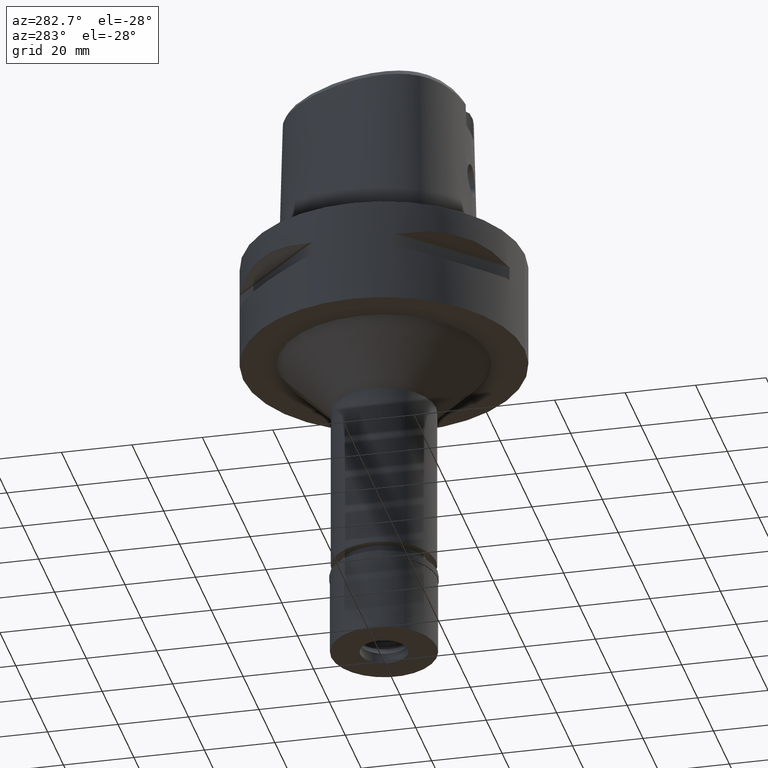
[diagram: clean part render]
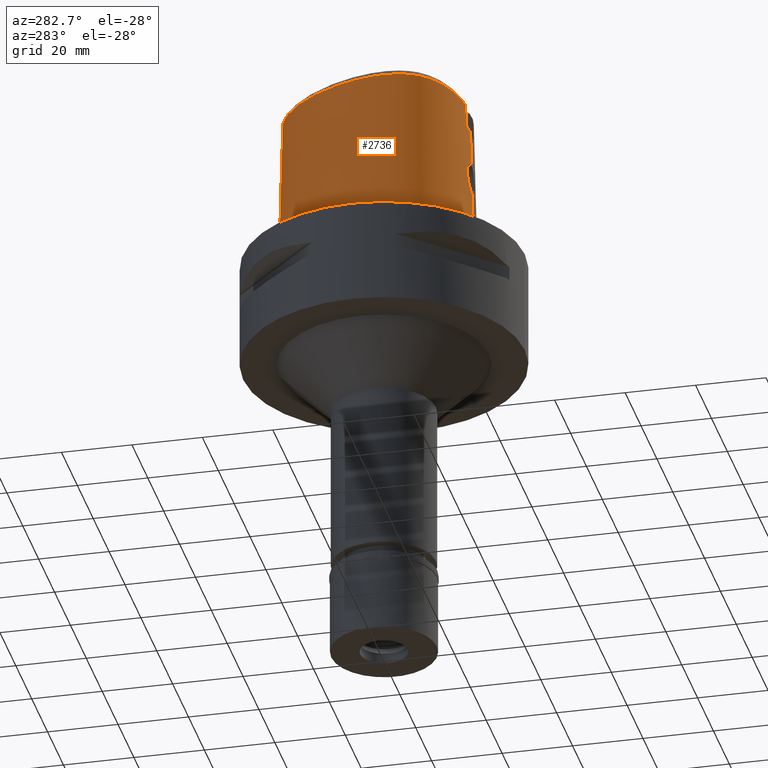
[diagram: same view with one face highlighted and labeled with its STEP entity id]
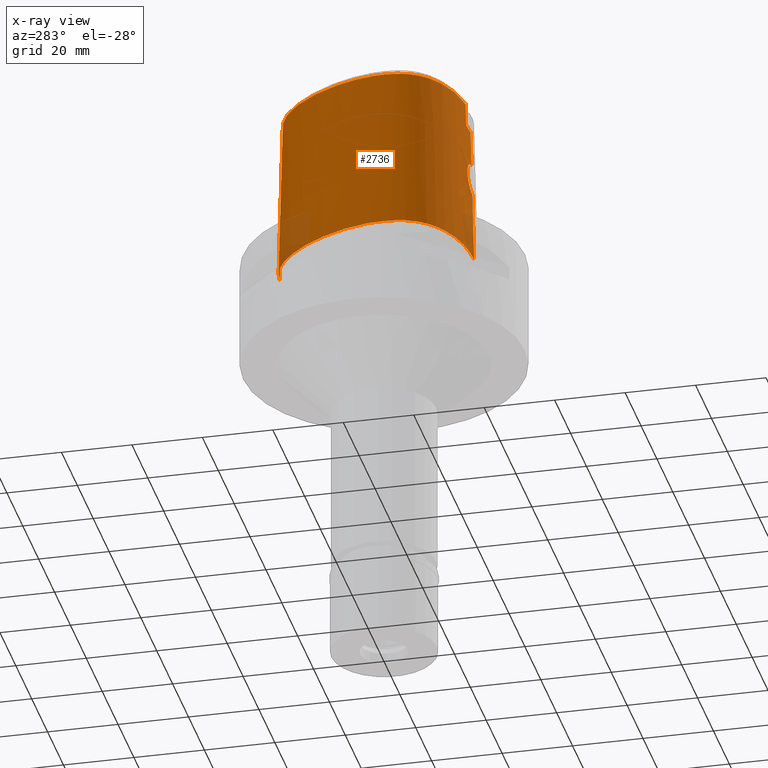
[diagram: x-ray of the same camera — body ghosted, the highlighted face saturated]
A machine part, auxiliary view. The second image highlights one B-rep face of the part: STEP entity #2736.
The next image is the same camera in x-ray: the body ghosted, the highlighted face saturated — about 5% of this face is hidden behind the body in this view.
In plain terms, the highlighted face is a freeform B-spline surface patch.
Its self-contained STEP definition (entity closure, byte-faithful):
#3 = CARTESIAN_POINT ( 'NONE',  ( -9.105791384800999921, 26.46675901278999987, 15.19677599112999999 ) ) ;
#9 = B_SPLINE_CURVE_WITH_KNOTS ( 'NONE', 3,
 ( #1922, #730, #2345, #3523, #2370, #398, #4357, #4746, #4117, #1312, #1661, #2849, #2472, #2511, #4407, #946, #1264, #2053, #2096, #541, #1711, #2538, #3214, #567, #4020, #3649, #474, #4091, #3673, #2493, #2900, #4431, #3286, #3627, #87, #2127, #3599, #882, #3237, #2822, #1735, #4819, #4048, #925, #852, #497, #2073, #111, #3304, #1333, #1683, #134, #3259, #4846, #4870, #4480, #4891, #517, #64, #3702, #1291, #2922, #2440, #4797, #2881, #4459, #157, #4501, #904, #1639, #1240, #4069, #1026, #4225, #1078, #238, #1816, #997, #3329, #4634, #972, #2174, #5029, #264, #4585, #3748, #3386, #2666, #2618, #5000, #288, #2948, #1435, #2975, #2233, #668, #204 ),
 .UNSPECIFIED., .F., .F.,
 ( 4, 2, 2, 1, 1, 1, 2, 2, 2, 2, 1, 1, 2, 2, 2, 1, 1, 1, 2, 2, 2, 2, 2, 1, 1, 2, 2, 2, 2, 1, 2, 2, 2, 2, 1, 1, 1, 2, 2, 2, 2, 1, 1, 2, 2, 2, 1, 1, 1, 2, 2, 2, 2, 2, 1, 1, 2, 2, 4 ),
 ( 0.0000000000000000000, 0.06249999999998936961, 0.09374999999998405442, 0.1093749999999814038, 0.1171874999999800715, 0.1210937499999793776, 0.1230468749999791833, 0.1249999999999789890, 0.1562499999999789058, 0.1718749999999788503, 0.1796874999999787670, 0.1835937499999787115, 0.1855468749999788503, 0.1874999999999789890, 0.2187499999999811540, 0.2343749999999824585, 0.2421874999999830691, 0.2460937499999833467, 0.2480468749999837352, 0.2499999999999841238, 0.3125000000000073275, 0.3437500000000193179, 0.3593750000000256462, 0.3671875000000284217, 0.3710937500000298095, 0.3730468750000301426, 0.3750000000000304756, 0.4375000000000274780, 0.4687500000000256462, 0.4843750000000247025, 0.4921875000000245914, 0.5000000000000245359, 0.5625000000000260902, 0.5937500000000265343, 0.6093750000000264233, 0.6171875000000264233, 0.6210937500000260902, 0.6230468750000259792, 0.6250000000000258682, 0.6562500000000214273, 0.6718750000000192069, 0.6796875000000180966, 0.6835937500000175415, 0.6855468750000169864, 0.6875000000000164313, 0.7187500000000078826, 0.7343750000000033307, 0.7421875000000009992, 0.7460937499999997780, 0.7480468749999994449, 0.7499999999999991118, 0.8125000000000007772, 0.8437500000000013323, 0.8593750000000016653, 0.8671875000000017764, 0.8710937500000016653, 0.8730468750000015543, 0.8750000000000014433, 1.000000000000000000 ),
 .UNSPECIFIED. ) ;
#28 = CARTESIAN_POINT ( 'NONE',  ( -21.30723541664999843, 12.30173080092000149, 47.45115768658000377 ) ) ;
#51 = CARTESIAN_POINT ( 'NONE',  ( -26.76156674046000106, -1.884109368367999915, 31.32396683884999788 ) ) ;
#64 = CARTESIAN_POINT ( 'NONE',  ( -4.256460948041309145, -24.80084657812259863, 23.39133378591556678 ) ) ;
#80 = CARTESIAN_POINT ( 'NONE',  ( -26.66520820062999775, -5.367805594694999627, 47.45115768658000377 ) ) ;
#87 = CARTESIAN_POINT ( 'NONE',  ( -3.972636365752692633, -24.72937778087100469, 27.22257177643495396 ) ) ;
#89 = CARTESIAN_POINT ( 'NONE',  ( -1.451045074373000022E-08, -24.57504746727000011, 40.00000005214000254 ) ) ;
#111 = CARTESIAN_POINT ( 'NONE',  ( -4.536359085941239933, -24.72544551544414659, 25.35955479186052841 ) ) ;
#127 = CARTESIAN_POINT ( 'NONE',  ( -11.43012056388999831, -22.98864562392000011, 47.45115768658000377 ) ) ;
#134 = CARTESIAN_POINT ( 'NONE',  ( -4.550009659928404560, -24.73228693208368867, 25.03285394944703057 ) ) ;
#137 = CARTESIAN_POINT ( 'NONE',  ( -4.602965878455999693, -24.35127227233000013, 40.00000000000000000 ) ) ;
#149 = CARTESIAN_POINT ( 'NONE',  ( 1.372734075386999954E-14, -24.83629963747999980, 29.55000000000000071 ) ) ;
#153 = CARTESIAN_POINT ( 'NONE',  ( 0.5689259952328999947, -25.59577896860000124, -0.9304148565995000730 ) ) ;
#157 = CARTESIAN_POINT ( 'NONE',  ( -3.957281473798043514, -24.84276546235786043, 22.75305380327923999 ) ) ;
#180 = ORIENTED_EDGE ( 'NONE', *, *, #2330, .F. ) ;
#189 = CARTESIAN_POINT ( 'NONE',  ( 3.862072967820000008E-11, 29.57499999998999840, 6.979602081476998784E-14 ) ) ;
#199 = CARTESIAN_POINT ( 'NONE',  ( -2.393548608512999998, -25.62160469787000139, -0.9304148565995000730 ) ) ;
#204 = CARTESIAN_POINT ( 'NONE',  ( -1.989063487286999783E-12, -25.06378435148999984, 20.44999999999999929 ) ) ;
#207 = CARTESIAN_POINT ( 'NONE',  ( -24.62887906780809644, -14.21948995895007428, 46.52070903171015459 ) ) ;
#214 = CARTESIAN_POINT ( 'NONE',  ( -1.989063487286999783E-12, -25.06378435148999984, 20.44999999999999929 ) ) ;
#238 = CARTESIAN_POINT ( 'NONE',  ( -3.472208232089663227, -24.89783358727838802, 22.05860165752378421 ) ) ;
#256 = B_SPLINE_CURVE_WITH_KNOTS ( 'NONE', 3,
 ( #446, #2748, #3574, #1499 ),
 .UNSPECIFIED., .F., .F.,
 ( 4, 4 ),
 ( 0.0000000000000000000, 1.000000000000000000 ),
 .UNSPECIFIED. ) ;
#257 = ORIENTED_EDGE ( 'NONE', *, *, #1492, .T. ) ;
#264 = CARTESIAN_POINT ( 'NONE',  ( -2.724936705858723940, -24.96514019468460788, 21.34399272640269274 ) ) ;
#268 = VERTEX_POINT ( 'NONE', #4237 ) ;
#288 = CARTESIAN_POINT ( 'NONE',  ( -1.791332517422957737, -25.02133236723710041, 20.81740716610678632 ) ) ;
#295 = CARTESIAN_POINT ( 'NONE',  ( -15.29776364833847069, -22.96525386903136834, 1.594704025569774336E-06 ) ) ;
#314 = CARTESIAN_POINT ( 'NONE',  ( -5.810185802762388718, 27.27372406630700752, 46.52070903171015459 ) ) ;
#364 = CARTESIAN_POINT ( 'NONE',  ( 0.6077626427860000069, 29.58843422314999927, -0.9304148565995000730 ) ) ;
#398 = CARTESIAN_POINT ( 'NONE',  ( -1.371865276106448261, -24.82198728018541090, 29.33894196721532666 ) ) ;
#413 = CARTESIAN_POINT ( 'NONE',  ( -9.316733122235000053, 26.81182151451999829, -0.9304148565995000730 ) ) ;
#439 = CARTESIAN_POINT ( 'NONE',  ( -12.96695399762000100, 23.75598698151999955, 15.19677599112999999 ) ) ;
#446 = CARTESIAN_POINT ( 'NONE',  ( -4.472216406693000579, -24.20008985674000357, 46.52070903171000538 ) ) ;
#463 = CARTESIAN_POINT ( 'NONE',  ( -27.06950028058999891, -5.357664967739999895, 31.32396683884999788 ) ) ;
#474 = CARTESIAN_POINT ( 'NONE',  ( -3.125212091967374040, -24.76551320166747772, 28.30726214217309078 ) ) ;
#479 = VECTOR ( 'NONE', #679, 1000.000000000000227 ) ;
#497 = CARTESIAN_POINT ( 'NONE',  ( -4.494536868534347640, -24.72037511897826789, 25.72370608056144548 ) ) ;
#511 = CARTESIAN_POINT ( 'NONE',  ( -24.14246339862999946, -15.65707266826999877, 31.32396683884999788 ) ) ;
#517 = CARTESIAN_POINT ( 'NONE',  ( -4.304263127651267951, -24.79330400446725235, 23.52125164125757095 ) ) ;
#533 = CARTESIAN_POINT ( 'NONE',  ( -6.695047937808999983, -25.26858195563999843, -0.9304148565995000730 ) ) ;
#541 = CARTESIAN_POINT ( 'NONE',  ( -2.492689275653130476, -24.79011428768485459, 28.80645659143079840 ) ) ;
#562 = CARTESIAN_POINT ( 'NONE',  ( -25.30843701435000170, -14.61183292277999968, 15.19677599112999999 ) ) ;
#566 = EDGE_LOOP ( 'NONE', ( #1862, #180, #2694, #1706, #2557, #257, #1102, #1937 ) ) ;
#567 = CARTESIAN_POINT ( 'NONE',  ( -2.771982096822935393, -24.77983138410382580, 28.61121349796146873 ) ) ;
#575 = CARTESIAN_POINT ( 'NONE',  ( -1.451045074373000022E-08, -24.57504746727000011, 40.00000005214000254 ) ) ;
#668 = CARTESIAN_POINT ( 'NONE',  ( -0.5686770761292725407, -25.06378435149000694, 20.45000000000000639 ) ) ;
#675 = LINE ( 'NONE', #214, #2126 ) ;
#679 = DIRECTION ( 'NONE',  ( 1.098664136046026157E-12, 0.02499051293976060906, -0.9996876883622242138 ) ) ;
#693 = CARTESIAN_POINT ( 'NONE',  ( -26.38518529509180155, -1.941591755871175495, 46.52070903171015459 ) ) ;
#730 = CARTESIAN_POINT ( 'NONE',  ( -0.2769662722958332046, -24.83629963748000335, 29.55000000000000426 ) ) ;
#747 = CARTESIAN_POINT ( 'NONE',  ( -26.90338645990000188, -8.653104814911998233, 31.32396683884999788 ) ) ;
#771 = CARTESIAN_POINT ( 'NONE',  ( -16.83227233242000054, 18.76477882274000208, 47.45115768658000377 ) ) ;
#799 = CARTESIAN_POINT ( 'NONE',  ( -24.12841474588443802, 6.387994236496543188, 46.52070903171015459 ) ) ;
#807 = EDGE_CURVE ( 'NONE', #1790, #3624, #4925, .T. ) ;
#846 = CARTESIAN_POINT ( 'NONE',  ( -27.87808444051999857, -5.337383713828999454, -0.9304148565995000730 ) ) ;
#852 = CARTESIAN_POINT ( 'NONE',  ( -4.409270466782026610, -24.71744676443914557, 26.16158622813302159 ) ) ;
#882 = CARTESIAN_POINT ( 'NONE',  ( -4.140463633215316186, -24.72339410617355071, 26.88684090363466694 ) ) ;
#897 = CARTESIAN_POINT ( 'NONE',  ( -24.60869342328999920, -14.20783577164000100, 47.45115768658000377 ) ) ;
#904 = CARTESIAN_POINT ( 'NONE',  ( -3.864901861996223875, -24.85421915751039990, 22.59833191710567846 ) ) ;
#918 = CARTESIAN_POINT ( 'NONE',  ( -18.17462470203000180, -20.76404249922000034, 31.32396683884999788 ) ) ;
#925 = CARTESIAN_POINT ( 'NONE',  ( -4.322680882352819332, -24.71812462909636210, 26.45319451589574911 ) ) ;
#940 = CARTESIAN_POINT ( 'NONE',  ( -2.373852710783999953, -25.21827329645000049, 15.19677599112999999 ) ) ;
#946 = CARTESIAN_POINT ( 'NONE',  ( -2.249867388139983770, -24.79844751147312820, 28.95562542824797703 ) ) ;
#968 = CARTESIAN_POINT ( 'NONE',  ( -25.63065438097000026, -13.07945028205000071, 31.32396683884999788 ) ) ;
#972 = CARTESIAN_POINT ( 'NONE',  ( -3.232655617673357629, -24.92130312931369573, 21.79804365392789123 ) ) ;
#978 = CARTESIAN_POINT ( 'NONE',  ( -18.55019647171269526, -21.45394527737663282, 1.594704025569774336E-06 ) ) ;
#997 = CARTESIAN_POINT ( 'NONE',  ( -3.310528231614959349, -24.91386642802240203, 21.87824841565020151 ) ) ;
#1005 = CARTESIAN_POINT ( 'NONE',  ( -23.43253025874738782, -17.76420407371377763, 1.594704025569774336E-06 ) ) ;
#1026 = CARTESIAN_POINT ( 'NONE',  ( -3.790579096131103665, -24.86307050843588229, 22.48323682071577423 ) ) ;
#1035 = CARTESIAN_POINT ( 'NONE',  ( -25.20914246282018212, 6.827421859936569248, 1.594704025569774336E-06 ) ) ;
#1078 = CARTESIAN_POINT ( 'NONE',  ( -3.613911253851754601, -24.88311648731248127, 22.23154152753993529 ) ) ;
#1079 = CARTESIAN_POINT ( 'NONE',  ( -1.250588132217000225E-11, 28.41206021534999593, 46.52071719450999154 ) ) ;
#1102 = ORIENTED_EDGE ( 'NONE', *, *, #4964, .T. ) ;
#1103 = CARTESIAN_POINT ( 'NONE',  ( -21.32746397970190699, 12.31340991043595068, 46.52070903171015459 ) ) ;
#1129 = CARTESIAN_POINT ( 'NONE',  ( -3.067023365113000111, 28.96669959635000069, 15.19677599112999999 ) ) ;
#1153 = CARTESIAN_POINT ( 'NONE',  ( -12.70057942605000001, 23.45048145681000307, 31.32396683884999788 ) ) ;
#1177 = CARTESIAN_POINT ( 'NONE',  ( -26.01411796069000459, 1.699187877638000055, 31.32396683884999788 ) ) ;
#1205 = CARTESIAN_POINT ( 'NONE',  ( -21.65785110640999989, 12.50416134570000004, 31.32396683884999788 ) ) ;
#1229 = EDGE_CURVE ( 'NONE', #1790, #3701, #1947, .T. ) ;
#1234 = CARTESIAN_POINT ( 'NONE',  ( -2.892851998227000010, 28.17405690288000031, 47.45115768658000377 ) ) ;
#1240 = CARTESIAN_POINT ( 'NONE',  ( -3.808704889424079809, -24.86093372512831934, 22.51074749453151114 ) ) ;
#1264 = CARTESIAN_POINT ( 'NONE',  ( -2.352923008986410824, -24.79499099983797805, 28.89459205334613046 ) ) ;
#1282 = CARTESIAN_POINT ( 'NONE',  ( -25.95531649472000169, -11.08496000391999914, 47.45115768658000377 ) ) ;
#1291 = CARTESIAN_POINT ( 'NONE',  ( -4.219931661120497779, -24.80642684597901848, 23.29859562715307675 ) ) ;
#1307 = CARTESIAN_POINT ( 'NONE',  ( -18.36798839527999760, -21.11923998724999763, 15.19677599112999999 ) ) ;
#1312 = CARTESIAN_POINT ( 'NONE',  ( -1.703896036126127278, -24.81434470502068024, 29.21892603896870710 ) ) ;
#1327 = CARTESIAN_POINT ( 'NONE',  ( -21.43542293824999945, -19.61750339890999939, -0.9304148565995000730 ) ) ;
#1333 = CARTESIAN_POINT ( 'NONE',  ( -4.547910621292748701, -24.72974527037225556, 25.14250056299538727 ) ) ;
#1335 = CARTESIAN_POINT ( 'NONE',  ( -7.937300651755237801, -23.78071178104281458, 46.52070903171015459 ) ) ;
#1352 = CARTESIAN_POINT ( 'NONE',  ( -26.37046815411000011, -13.40391020201000138, -0.9304148565995000730 ) ) ;
#1358 = CARTESIAN_POINT ( 'NONE',  ( -4.472216406693000579, -24.20008985674000357, 46.52070903171000538 ) ) ;
#1435 = CARTESIAN_POINT ( 'NONE',  ( -1.754298049354333866, -25.02308377135081940, 20.80178576367015353 ) ) ;
#1492 = EDGE_CURVE ( 'NONE', #2366, #268, #2908, .T. ) ;
#1499 = CARTESIAN_POINT ( 'NONE',  ( -4.602965878455999693, -24.35127227233000013, 40.00000000000000000 ) ) ;
#1550 = CARTESIAN_POINT ( 'NONE',  ( -27.12297208897999923, -11.41745865801999926, -0.9304148565995000730 ) ) ;
#1574 = CARTESIAN_POINT ( 'NONE',  ( -17.45811250657000357, 19.27961870793000188, 15.19677599112999999 ) ) ;
#1598 = CARTESIAN_POINT ( 'NONE',  ( -24.10679938992999993, 6.379205358087999933, 47.45115768658000377 ) ) ;
#1608 = B_SPLINE_SURFACE_WITH_KNOTS ( 'NONE', 3, 3, ( 
 ( #4715, #2412, #4688, #3541 ),
 ( #364, #2044, #2361, #3135 ),
 ( #1629, #2793, #3619, #2388 ),
 ( #4302, #1129, #3514, #1234 ),
 ( #2740, #5103, #3963, #3565 ),
 ( #413, #3, #4326, #3906 ),
 ( #2763, #439, #1153, #3932 ),
 ( #1938, #1574, #3159, #771 ),
 ( #2434, #1968, #1205, #28 ),
 ( #3181, #2020, #4399, #1598 ),
 ( #4374, #4739, #1177, #4760 ),
 ( #3590, #2815, #51, #4011 ),
 ( #846, #3207, #463, #80 ),
 ( #1655, #2718, #747, #2333 ),
 ( #1550, #2066, #3300, #1282 ),
 ( #1352, #2917, #968, #4886 ),
 ( #2167, #562, #3642, #897 ),
 ( #4422, #4452, #511, #3281 ),
 ( #2145, #2528, #3667, #3742 ),
 ( #1327, #4911, #2895, #4474 ),
 ( #3696, #1307, #918, #2507 ),
 ( #2464, #2090, #2558, #4866 ),
 ( #1678, #3254, #4086, #127 ),
 ( #533, #1752, #4812, #2486 ),
 ( #199, #940, #4836, #2117 ),
 ( #153, #4112, #2940, #4040 ),
 ( #4063, #4497, #1701, #4526 ) ),
 .UNSPECIFIED., .F., .F., .F.,
 ( 4, 1, 1, 1, 1, 1, 1, 1, 1, 1, 1, 1, 1, 1, 1, 1, 1, 1, 1, 1, 1, 1, 1, 1, 4 ),
 ( 4, 4 ),
 ( -0.01204223939041000092, 0.0000000000000000000, 0.04166666666714999995, 0.08333333333378001306, 0.1250000000004000134, 0.1666666666671000052, 0.2500000000002999823, 0.3333333333335999904, 0.4166666666668999985, 0.4583333333335000148, 0.5000000000001000311, 0.5416666666667999674, 0.5833333333333999837, 0.6250000000000000000, 0.6458333333333000637, 0.6666666666667000474, 0.6875000000000000000, 0.7083333333333000637, 0.7499999999999000799, 0.7916666666666000163, 0.8333333333332000326, 0.8749999999998000488, 0.9166666666664999852, 1.000000000000000000, 1.008851807892999997 ),
 ( -2.515233240434999982E-09, 1.000000128276999911 ),
 .UNSPECIFIED. ) ;
#1629 = CARTESIAN_POINT ( 'NONE',  ( -0.7475778419455000323, 29.63225229679999728, -0.9304148565995000730 ) ) ;
#1639 = CARTESIAN_POINT ( 'NONE',  ( -3.825895809632645417, -24.85889621362734658, 22.53711802513210216 ) ) ;
#1655 = CARTESIAN_POINT ( 'NONE',  ( -27.70696776848000198, -8.754869102031999972, -0.9304148565995000730 ) ) ;
#1661 = CARTESIAN_POINT ( 'NONE',  ( -1.722296434336843651, -24.81387508079694726, 29.21144792399065437 ) ) ;
#1669 = CARTESIAN_POINT ( 'NONE',  ( -1.600023210474000136E-11, -25.57499999999999929, 7.627232179174998351E-14 ) ) ;
#1678 = CARTESIAN_POINT ( 'NONE',  ( -11.74634101732999980, -24.15815462011999770, -0.9304148565995000730 ) ) ;
#1683 = CARTESIAN_POINT ( 'NONE',  ( -4.549596676163452535, -24.73138399865687731, 25.07048059281705576 ) ) ;
#1701 = CARTESIAN_POINT ( 'NONE',  ( 0.8392169817379000474, -24.78463052494000252, 31.32396683884999788 ) ) ;
#1706 = ORIENTED_EDGE ( 'NONE', *, *, #1229, .T. ) ;
#1711 = CARTESIAN_POINT ( 'NONE',  ( -2.510338385227683045, -24.78948177504960881, 28.79484028636983695 ) ) ;
#1735 = CARTESIAN_POINT ( 'NONE',  ( -4.192714366875119225, -24.72178541175449240, 26.76740225216487090 ) ) ;
#1752 = CARTESIAN_POINT ( 'NONE',  ( -6.639625055429000611, -24.86795305780000120, 15.19677599112999999 ) ) ;
#1761 = CARTESIAN_POINT ( 'NONE',  ( -14.87405714084877495, -21.87944447072156251, 46.52070903171015459 ) ) ;
#1766 = CARTESIAN_POINT ( 'NONE',  ( -3.149084865899923980, 29.34015621081000447, 1.594704025569774336E-06 ) ) ;
#1785 = CARTESIAN_POINT ( 'NONE',  ( -17.99241701171541408, -20.42933791836913571, 46.52070903171015459 ) ) ;
#1790 = VERTEX_POINT ( 'NONE', #3312 ) ;
#1794 = CARTESIAN_POINT ( 'NONE',  ( -6.691850458345027342, -25.24546871038005591, 1.594704025569774336E-06 ) ) ;
#1799 = CARTESIAN_POINT ( 'NONE',  ( -1.250588132217000225E-11, 28.41206021534999593, 46.52071719450999154 ) ) ;
#1816 = CARTESIAN_POINT ( 'NONE',  ( -3.399231802462693075, -24.90521494129050240, 21.97387284700376142 ) ) ;
#1848 = CARTESIAN_POINT ( 'NONE',  ( -27.85475985746778349, -5.337968751002271972, 1.594704025569774336E-06 ) ) ;
#1862 = ORIENTED_EDGE ( 'NONE', *, *, #2876, .F. ) ;
#1895 = VERTEX_POINT ( 'NONE', #3244 ) ;
#1907 = VERTEX_POINT ( 'NONE', #1669 ) ;
#1922 = CARTESIAN_POINT ( 'NONE',  ( 1.372734075386999954E-14, -24.83629963747999980, 29.55000000000000071 ) ) ;
#1937 = ORIENTED_EDGE ( 'NONE', *, *, #2840, .T. ) ;
#1938 = CARTESIAN_POINT ( 'NONE',  ( -17.77103259364999843, 19.53703865053000044, -0.9304148565995000730 ) ) ;
#1947 = B_SPLINE_CURVE_WITH_KNOTS ( 'NONE', 3,
 ( #89, #3238, #4820, #137 ),
 .UNSPECIFIED., .F., .F.,
 ( 4, 4 ),
 ( 0.0000000000000000000, 1.000000000000000000 ),
 .UNSPECIFIED. ) ;
#1968 = CARTESIAN_POINT ( 'NONE',  ( -22.00846679616999779, 12.70659189049000126, 15.19677599112999999 ) ) ;
#2020 = CARTESIAN_POINT ( 'NONE',  ( -24.85610451040999891, 6.683875408799999640, 15.19677599112999999 ) ) ;
#2044 = CARTESIAN_POINT ( 'NONE',  ( 0.5902542419837000232, 29.18556684915999710, 15.19677599112999999 ) ) ;
#2053 = CARTESIAN_POINT ( 'NONE',  ( -2.404910036721158662, -24.79321437770951064, 28.86288751850017320 ) ) ;
#2066 = CARTESIAN_POINT ( 'NONE',  ( -26.73375355755999649, -11.30662577332000041, 15.19677599112999999 ) ) ;
#2073 = CARTESIAN_POINT ( 'NONE',  ( -4.515545264919024859, -24.72200876241213052, 25.57765437787082163 ) ) ;
#2090 = CARTESIAN_POINT ( 'NONE',  ( -15.15935276510999863, -22.61055589961999956, 15.19677599112999999 ) ) ;
#2096 = CARTESIAN_POINT ( 'NONE',  ( -2.466259342607413974, -24.79105701084886348, 28.82372012011356688 ) ) ;
#2117 = CARTESIAN_POINT ( 'NONE',  ( -2.334460915326999952, -24.41161049359999780, 47.45115768658000377 ) ) ;
#2126 = VECTOR ( 'NONE', #4177, 1000.000000000000000 ) ;
#2127 = CARTESIAN_POINT ( 'NONE',  ( -4.068466760403406823, -24.72584630863869037, 27.03834969239065344 ) ) ;
#2145 = CARTESIAN_POINT ( 'NONE',  ( -23.44929528839000099, -17.78045352611999874, -0.9304148565995000730 ) ) ;
#2155 = CARTESIAN_POINT ( 'NONE',  ( -22.33885462301414648, 12.89734372998672818, 1.594704025569774336E-06 ) ) ;
#2167 = CARTESIAN_POINT ( 'NONE',  ( -25.65830880988000118, -14.81383149834999990, -0.9304148565995000730 ) ) ;
#2174 = CARTESIAN_POINT ( 'NONE',  ( -3.227056402119971246, -24.92183285210593269, 21.79239637393090234 ) ) ;
#2175 = CARTESIAN_POINT ( 'NONE',  ( -22.59428085107424522, -16.95173346410156157, 46.52070903171015459 ) ) ;
#2182 = CARTESIAN_POINT ( 'NONE',  ( 1.372734075386999954E-14, -24.83629963747999980, 29.55000000000000071 ) ) ;
#2233 = CARTESIAN_POINT ( 'NONE',  ( -1.165430911961774729, -25.05044697737378812, 20.55812161079594702 ) ) ;
#2274 = EDGE_CURVE ( 'NONE', #2366, #3701, #256, .T. ) ;
#2287 = VERTEX_POINT ( 'NONE', #2698 ) ;
#2330 = EDGE_CURVE ( 'NONE', #3624, #2287, #9, .T. ) ;
#2333 = CARTESIAN_POINT ( 'NONE',  ( -26.50159580560999828, -8.602222671351999139, 47.45115768658000377 ) ) ;
#2345 = CARTESIAN_POINT ( 'NONE',  ( -0.5644801122068427990, -24.83439132317405651, 29.52465347867335410 ) ) ;
#2361 = CARTESIAN_POINT ( 'NONE',  ( 0.5727458411814000394, 28.78269947516999849, 31.32396683884999788 ) ) ;
#2366 = VERTEX_POINT ( 'NONE', #1358 ) ;
#2370 = CARTESIAN_POINT ( 'NONE',  ( -1.150414049173519970, -24.82628098737378508, 29.40485804970606054 ) ) ;
#2388 = CARTESIAN_POINT ( 'NONE',  ( -0.6821017744095000390, 28.41983272930999860, 47.45115768658000377 ) ) ;
#2412 = CARTESIAN_POINT ( 'NONE',  ( 0.8850788342494000371, 29.16624646004000354, 15.19677599112999999 ) ) ;
#2434 = CARTESIAN_POINT ( 'NONE',  ( -22.35908248594000369, 12.90902243528000071, -0.9304148565995000730 ) ) ;
#2440 = CARTESIAN_POINT ( 'NONE',  ( -4.207829589086045985, -24.80824686016802261, 23.26889234074807078 ) ) ;
#2464 = CARTESIAN_POINT ( 'NONE',  ( -15.30623779945999985, -22.98697011073999974, -0.9304148565995000730 ) ) ;
#2472 = CARTESIAN_POINT ( 'NONE',  ( -1.858668925429010743, -24.81033890557745281, 29.15501574767839088 ) ) ;
#2486 = CARTESIAN_POINT ( 'NONE',  ( -6.528779290669999291, -24.06669526213000054, 47.45115768658000377 ) ) ;
#2493 = CARTESIAN_POINT ( 'NONE',  ( -3.205390121192459585, -24.76204090357539656, 28.22925085367092279 ) ) ;
#2507 = CARTESIAN_POINT ( 'NONE',  ( -17.98126100878999978, -20.40884501119999683, 47.45115768658000377 ) ) ;
#2511 = CARTESIAN_POINT ( 'NONE',  ( -1.984502176480205771, -24.80676203802991253, 29.09712838306112559 ) ) ;
#2528 = CARTESIAN_POINT ( 'NONE',  ( -23.15870193931999665, -17.49879683382999929, 15.19677599112999999 ) ) ;
#2538 = CARTESIAN_POINT ( 'NONE',  ( -2.520279592226924326, -24.78912363236072736, 28.78824203054360353 ) ) ;
#2544 = CARTESIAN_POINT ( 'NONE',  ( -25.63812386400307375, -14.80217771440059593, 1.594704025569774336E-06 ) ) ;
#2557 = ORIENTED_EDGE ( 'NONE', *, *, #2274, .F. ) ;
#2558 = CARTESIAN_POINT ( 'NONE',  ( -15.01246773077000007, -22.23414168849999939, 31.32396683884999788 ) ) ;
#2563 = CARTESIAN_POINT ( 'NONE',  ( -20.71467387648261038, -18.66855143330479194, 46.52070903171015459 ) ) ;
#2568 = CARTESIAN_POINT ( 'NONE',  ( -2.676740183359651581, -25.57499996013424948, 1.594704025569774336E-06 ) ) ;
#2618 = CARTESIAN_POINT ( 'NONE',  ( -1.888484788632725619, -25.01654759054932953, 20.86028587657997946 ) ) ;
#2666 = CARTESIAN_POINT ( 'NONE',  ( -1.979024681900259486, -25.01188081594407819, 20.90239184516247306 ) ) ;
#2694 = ORIENTED_EDGE ( 'NONE', *, *, #807, .F. ) ;
#2698 = CARTESIAN_POINT ( 'NONE',  ( -1.989063487286999783E-12, -25.06378435148999984, 20.44999999999999929 ) ) ;
#2718 = CARTESIAN_POINT ( 'NONE',  ( -27.30517711419000193, -8.703986958471999102, 15.19677599112999999 ) ) ;
#2736 = ADVANCED_FACE ( 'NONE', ( #3986 ), #1608, .T. ) ;
#2740 = CARTESIAN_POINT ( 'NONE',  ( -6.271543174205000071, 28.37237221400999942, -0.9304148565995000730 ) ) ;
#2741 = CARTESIAN_POINT ( 'NONE',  ( -0.9629684636075338533, 28.41206041874112387, 46.52070903171015459 ) ) ;
#2748 = CARTESIAN_POINT ( 'NONE',  ( -4.516620139914707011, -24.24973684088320525, 44.34713935447333455 ) ) ;
#2763 = CARTESIAN_POINT ( 'NONE',  ( -13.23332856920000111, 24.06149250624000047, -0.9304148565995000730 ) ) ;
#2793 = CARTESIAN_POINT ( 'NONE',  ( -0.7257524861002000449, 29.22811244097000127, 15.19677599112999999 ) ) ;
#2815 = CARTESIAN_POINT ( 'NONE',  ( -27.16099283614000015, -1.823107515346999996, 15.19677599112999999 ) ) ;
#2822 = CARTESIAN_POINT ( 'NONE',  ( -4.183313010706773305, -24.72206008749299855, 26.78965014441195791 ) ) ;
#2840 = EDGE_CURVE ( 'NONE', #1895, #1907, #3706, .T. ) ;
#2849 = CARTESIAN_POINT ( 'NONE',  ( -1.733314166582773153, -24.81359117582310247, 29.20692116581517084 ) ) ;
#2876 = EDGE_CURVE ( 'NONE', #2287, #1907, #675, .T. ) ;
#2881 = CARTESIAN_POINT ( 'NONE',  ( -4.098306025962242138, -24.82420565877256635, 23.01795395542374223 ) ) ;
#2895 = CARTESIAN_POINT ( 'NONE',  ( -20.94550165841999956, -18.97246369487000095, 31.32396683884999788 ) ) ;
#2900 = CARTESIAN_POINT ( 'NONE',  ( -3.211065830876444593, -24.76179211193618102, 28.22361125334741772 ) ) ;
#2908 = B_SPLINE_CURVE_WITH_KNOTS ( 'NONE', 3,
 ( #3305, #4893, #1335, #4503, #1761, #1785, #2563, #2175, #3749, #207, #3136, #4659, #5105, #3861, #693, #4328, #799, #1103, #3466, #4635, #3542, #314, #3079, #2741, #1079 ),
 .UNSPECIFIED., .F., .F.,
 ( 4, 1, 1, 1, 1, 1, 1, 1, 1, 1, 1, 1, 1, 1, 1, 1, 1, 1, 1, 1, 1, 1, 4 ),
 ( 0.0000000000000000000, 0.03735859270279597022, 0.08111502030725722956, 0.1248714479116135589, 0.1686278755159698883, 0.2123843031204311338, 0.2561407307247874909, 0.2780189445269656834, 0.2998971583291438203, 0.3217753721314269288, 0.3436535859336051768, 0.3874100135379615062, 0.4311664411423178356, 0.4749228687467790810, 0.5186792963511354104, 0.5624357239554917953, 0.6499485791643093702, 0.7374614343731270560, 0.8249742895818396038, 0.8687307171863009048, 0.9124871447906782729, 0.9562435723950660771, 1.000000000000000000 ),
 .UNSPECIFIED. ) ;
#2917 = CARTESIAN_POINT ( 'NONE',  ( -26.00056126754000374, -13.24168024202999838, 15.19677599112999999 ) ) ;
#2922 = CARTESIAN_POINT ( 'NONE',  ( -4.212409792926583130, -24.80756021599265893, 23.28005703556016570 ) ) ;
#2927 = CARTESIAN_POINT ( 'NONE',  ( -17.75297948076063648, 19.52218747454096004, 1.594704025569774336E-06 ) ) ;
#2940 = CARTESIAN_POINT ( 'NONE',  ( 0.5595577579682999847, -24.78951157442000053, 31.32396683884999788 ) ) ;
#2948 = CARTESIAN_POINT ( 'NONE',  ( -1.769098408929393518, -25.02238666794960409, 20.80800104489343383 ) ) ;
#2955 = CARTESIAN_POINT ( 'NONE',  ( -13.21796077911511347, 24.04386715729688007, 1.594704025569774336E-06 ) ) ;
#2975 = CARTESIAN_POINT ( 'NONE',  ( -1.748501813549830919, -25.02335543620022307, 20.79936485166496496 ) ) ;
#3039 = CARTESIAN_POINT ( 'NONE',  ( -24.77458490276118752, -16.12173825760291024, 1.594704025569774336E-06 ) ) ;
#3043 = CARTESIAN_POINT ( 'NONE',  ( -4.850872119845472067E-09, -24.66214466420238338, 36.51666702990937807 ) ) ;
#3079 = CARTESIAN_POINT ( 'NONE',  ( -2.897876354792229492, 28.19692242654060976, 46.52070903171015459 ) ) ;
#3135 = CARTESIAN_POINT ( 'NONE',  ( 0.5552374403791999757, 28.37983210117999988, 47.45115768658000377 ) ) ;
#3136 = CARTESIAN_POINT ( 'NONE',  ( -25.28208905154320263, -12.92658008282859683, 46.52070903171015459 ) ) ;
#3159 = CARTESIAN_POINT ( 'NONE',  ( -17.14519241950000250, 19.02219876534000065, 31.32396683884999788 ) ) ;
#3181 = CARTESIAN_POINT ( 'NONE',  ( -25.23075707065000017, 6.836210434154999405, -0.9304148565995000730 ) ) ;
#3207 = CARTESIAN_POINT ( 'NONE',  ( -27.47379236056000096, -5.347524340784999275, 15.19677599112999999 ) ) ;
#3214 = CARTESIAN_POINT ( 'NONE',  ( -2.652045588673546117, -24.78435656486181671, 28.70018943685018797 ) ) ;
#3237 = CARTESIAN_POINT ( 'NONE',  ( -4.160790905031581666, -24.72274124955069396, 26.84178595757023800 ) ) ;
#3238 = CARTESIAN_POINT ( 'NONE',  ( -1.541632516112456219, -24.57506718850319416, 40.00000010711480058 ) ) ;
#3244 = CARTESIAN_POINT ( 'NONE',  ( 3.862072967820000008E-11, 29.57499999998999840, 6.979602081476998784E-14 ) ) ;
#3254 = CARTESIAN_POINT ( 'NONE',  ( -11.64093419951000108, -23.76831828805000058, 15.19677599112999999 ) ) ;
#3259 = CARTESIAN_POINT ( 'NONE',  ( -4.549921019084919749, -24.74001865967037261, 24.72536366591872437 ) ) ;
#3281 = CARTESIAN_POINT ( 'NONE',  ( -23.81701468686999945, -15.41783888732999941, 47.45115768658000377 ) ) ;
#3286 = CARTESIAN_POINT ( 'NONE',  ( -3.657706900528191252, -24.74222987758969694, 27.72260022702113247 ) ) ;
#3300 = CARTESIAN_POINT ( 'NONE',  ( -26.34453502613999731, -11.19579288861999977, 31.32396683884999788 ) ) ;
#3304 = CARTESIAN_POINT ( 'NONE',  ( -4.544092989177814346, -24.72741046393047171, 25.25074796832975821 ) ) ;
#3305 = CARTESIAN_POINT ( 'NONE',  ( -4.472216406693000579, -24.20008985674000357, 46.52070903171000538 ) ) ;
#3312 = CARTESIAN_POINT ( 'NONE',  ( -1.451045074373000022E-08, -24.57504746727000011, 40.00000005214000254 ) ) ;
#3329 = CARTESIAN_POINT ( 'NONE',  ( -3.265305598819546962, -24.91820214815111711, 21.83126415608266058 ) ) ;
#3336 = CARTESIAN_POINT ( 'NONE',  ( -26.77222810411613096, 1.900468739752689151, 1.594704025569774336E-06 ) ) ;
#3386 = CARTESIAN_POINT ( 'NONE',  ( -2.039991806420665466, -25.00858519317946360, 20.93235562228052515 ) ) ;
#3421 = CARTESIAN_POINT ( 'NONE',  ( -4.859659523906704219E-09, -24.74922215084454891, 33.03333351495462722 ) ) ;
#3422 = LINE ( 'NONE', #1799, #479 ) ;
#3466 = CARTESIAN_POINT ( 'NONE',  ( -16.85032607016355399, 18.77963051275781936, 46.52070903171015459 ) ) ;
#3514 = CARTESIAN_POINT ( 'NONE',  ( -2.979937681670000060, 28.57037824961999917, 31.32396683884999788 ) ) ;
#3523 = CARTESIAN_POINT ( 'NONE',  ( -1.003044292487226929, -24.82866638025621953, 29.44055839642896899 ) ) ;
#3541 = CARTESIAN_POINT ( 'NONE',  ( 0.8322161643508000362, 28.36171584122000056, 47.45115768658000377 ) ) ;
#3542 = CARTESIAN_POINT ( 'NONE',  ( -8.696078067630542918, 25.79654218449199377, 46.52070903171015459 ) ) ;
#3565 = CARTESIAN_POINT ( 'NONE',  ( -5.801139244736000400, 27.25218114788000179, 47.45115768658000377 ) ) ;
#3574 = CARTESIAN_POINT ( 'NONE',  ( -4.560197131398992632, -24.30012325357083469, 42.17356967723666372 ) ) ;
#3590 = CARTESIAN_POINT ( 'NONE',  ( -27.56041893181000191, -1.762105662326000077, -0.9304148565995000730 ) ) ;
#3599 = CARTESIAN_POINT ( 'NONE',  ( -4.098396066246055902, -24.72479182399337461, 26.97739233805751269 ) ) ;
#3619 = CARTESIAN_POINT ( 'NONE',  ( -0.7039271302548000264, 28.82397258513999816, 31.32396683884999788 ) ) ;
#3624 = VERTEX_POINT ( 'NONE', #149 ) ;
#3627 = CARTESIAN_POINT ( 'NONE',  ( -3.900686180413632798, -24.73222278675434538, 27.34720371155059482 ) ) ;
#3642 = CARTESIAN_POINT ( 'NONE',  ( -24.95856521882000223, -14.40983434720999945, 31.32396683884999788 ) ) ;
#3649 = CARTESIAN_POINT ( 'NONE',  ( -3.029613744919226637, -24.76954858878827892, 28.39612668127737294 ) ) ;
#3667 = CARTESIAN_POINT ( 'NONE',  ( -22.86810859024000209, -17.21714014155000072, 31.32396683884999788 ) ) ;
#3673 = CARTESIAN_POINT ( 'NONE',  ( -3.192130741525159188, -24.76262039752748123, 28.24235843699961634 ) ) ;
#3696 = CARTESIAN_POINT ( 'NONE',  ( -18.56135208851999963, -21.47443747527000113, -0.9304148565995000730 ) ) ;
#3701 = VERTEX_POINT ( 'NONE', #4108 ) ;
#3702 = CARTESIAN_POINT ( 'NONE',  ( -4.231109674115377750, -24.80473516988229221, 23.32640847146415197 ) ) ;
#3706 = B_SPLINE_CURVE_WITH_KNOTS ( 'NONE', 3,
 ( #189, #4564, #1766, #3815, #4592, #2955, #2927, #2155, #1035, #3336, #4926, #1848, #3840, #4152, #4538, #2544, #3039, #1005, #5007, #978, #295, #3756, #1794, #2568, #4209 ),
 .UNSPECIFIED., .F., .F.,
 ( 4, 1, 1, 1, 1, 1, 1, 1, 1, 1, 1, 1, 1, 1, 1, 1, 1, 1, 1, 1, 1, 1, 4 ),
 ( 0.0000000000000000000, 0.04166666666714999995, 0.08333333333378001306, 0.1250000000004000134, 0.1666666666671000052, 0.2500000000002999823, 0.3333333333335999904, 0.4166666666668999985, 0.4583333333335000148, 0.5000000000001000311, 0.5416666666667999674, 0.5833333333333999837, 0.6250000000000000000, 0.6458333333333000637, 0.6666666666667000474, 0.6875000000000000000, 0.7083333333333000637, 0.7499999999999000799, 0.7916666666666000163, 0.8333333333332000326, 0.8749999999998000488, 0.9166666666664999852, 1.000000000000000000 ),
 .UNSPECIFIED. ) ;
#3742 = CARTESIAN_POINT ( 'NONE',  ( -22.57751524115999686, -16.93548344927000215, 47.45115768658000377 ) ) ;
#3748 = CARTESIAN_POINT ( 'NONE',  ( -2.224291573382344733, -24.99814500580221122, 21.02832322412746180 ) ) ;
#3749 = CARTESIAN_POINT ( 'NONE',  ( -23.83579125614020455, -15.43164133760027745, 46.52070903171015459 ) ) ;
#3756 = CARTESIAN_POINT ( 'NONE',  ( -11.74025984434053527, -24.13566402395242960, 1.594704025569774336E-06 ) ) ;
#3815 = CARTESIAN_POINT ( 'NONE',  ( -6.262496929287161507, 28.35083004119991656, 1.594704025569774336E-06 ) ) ;
#3840 = CARTESIAN_POINT ( 'NONE',  ( -27.68378749869457067, -8.751933588718316059, 1.594704025569774336E-06 ) ) ;
#3861 = CARTESIAN_POINT ( 'NONE',  ( -26.68853359099247413, -5.367220537272483050, 46.52070903171015459 ) ) ;
#3906 = CARTESIAN_POINT ( 'NONE',  ( -8.683907909931999569, 25.77663400931000126, 47.45115768658000377 ) ) ;
#3932 = CARTESIAN_POINT ( 'NONE',  ( -12.43420485446999990, 23.14497593209999948, 47.45115768658000377 ) ) ;
#3963 = CARTESIAN_POINT ( 'NONE',  ( -5.957940554558999402, 27.62557816992000070, 31.32396683884999788 ) ) ;
#3986 = FACE_OUTER_BOUND ( 'NONE', #566, .T. ) ;
#4011 = CARTESIAN_POINT ( 'NONE',  ( -26.36214064479000285, -1.945111221389000056, 47.45115768658000377 ) ) ;
#4020 = CARTESIAN_POINT ( 'NONE',  ( -2.944900302943597836, -24.77298581947536249, 28.46923970402221826 ) ) ;
#4040 = CARTESIAN_POINT ( 'NONE',  ( 0.5548736393360000907, -24.38637787733000195, 47.45115768658000377 ) ) ;
#4048 = CARTESIAN_POINT ( 'NONE',  ( -4.201380620709785241, -24.72153596869751624, 26.74670933509912274 ) ) ;
#4063 = CARTESIAN_POINT ( 'NONE',  ( 0.8532670505637000025, -25.59082388479999892, -0.9304148565995000730 ) ) ;
#4069 = CARTESIAN_POINT ( 'NONE',  ( -3.797137772289172375, -24.86229941254662279, 22.49313827486260564 ) ) ;
#4086 = CARTESIAN_POINT ( 'NONE',  ( -11.53552738169999969, -23.37848195599000078, 31.32396683884999788 ) ) ;
#4091 = CARTESIAN_POINT ( 'NONE',  ( -3.172181247292560791, -24.76348918694394285, 28.26195868750397366 ) ) ;
#4108 = CARTESIAN_POINT ( 'NONE',  ( -4.602965878455999693, -24.35127227233000013, 40.00000000000000000 ) ) ;
#4112 = CARTESIAN_POINT ( 'NONE',  ( 0.5642418766005999897, -25.19264527150999911, 15.19677599112999999 ) ) ;
#4117 = CARTESIAN_POINT ( 'NONE',  ( -1.676286854296592521, -24.81504355059169598, 29.23004141242347487 ) ) ;
#4152 = CARTESIAN_POINT ( 'NONE',  ( -27.10051713521869488, -11.41106444217398064, 1.594704025569774336E-06 ) ) ;
#4177 = DIRECTION ( 'NONE',  ( -6.849287416346782144E-13, -0.02499051295403921166, -0.9996876883618673881 ) ) ;
#4209 = CARTESIAN_POINT ( 'NONE',  ( -1.600023210474000136E-11, -25.57499999999999929, 7.627232179174998351E-14 ) ) ;
#4225 = CARTESIAN_POINT ( 'NONE',  ( -3.702709904148339781, -24.87336589807969744, 22.35148037005131627 ) ) ;
#4237 = CARTESIAN_POINT ( 'NONE',  ( -1.250588132217000225E-11, 28.41206021534999593, 46.52071719450999154 ) ) ;
#4302 = CARTESIAN_POINT ( 'NONE',  ( -3.154109048555999717, 29.36302094308000221, -0.9304148565995000730 ) ) ;
#4326 = CARTESIAN_POINT ( 'NONE',  ( -8.894849647366001477, 26.12169651105000057, 31.32396683884999788 ) ) ;
#4328 = CARTESIAN_POINT ( 'NONE',  ( -25.64632274978232118, 1.601536978524294108, 46.52070903171015459 ) ) ;
#4357 = CARTESIAN_POINT ( 'NONE',  ( -1.482686770870139670, -24.81966152212502763, 29.30289444251078734 ) ) ;
#4374 = CARTESIAN_POINT ( 'NONE',  ( -26.79474626693000161, 1.906447389773000101, -0.9304148565995000730 ) ) ;
#4399 = CARTESIAN_POINT ( 'NONE',  ( -24.48145195017000120, 6.531540383444000675, 31.32396683884999788 ) ) ;
#4407 = CARTESIAN_POINT ( 'NONE',  ( -2.182391158249094243, -24.80062287573413471, 28.99314679185867050 ) ) ;
#4422 = CARTESIAN_POINT ( 'NONE',  ( -24.79336082216000037, -16.13554023016000016, -0.9304148565995000730 ) ) ;
#4431 = CARTESIAN_POINT ( 'NONE',  ( -3.459328791574006079, -24.75086403572709770, 27.97515479134741767 ) ) ;
#4452 = CARTESIAN_POINT ( 'NONE',  ( -24.46791211038999947, -15.89630644921000169, 15.19677599112999999 ) ) ;
#4459 = CARTESIAN_POINT ( 'NONE',  ( -3.994669282579361269, -24.83794919743791851, 22.82040209576821255 ) ) ;
#4474 = CARTESIAN_POINT ( 'NONE',  ( -20.70054101850000094, -18.64994384284999995, 47.45115768658000377 ) ) ;
#4480 = CARTESIAN_POINT ( 'NONE',  ( -4.406213798168646001, -24.77565163120073777, 23.85472934568140957 ) ) ;
#4497 = CARTESIAN_POINT ( 'NONE',  ( 0.8462420161508000804, -25.18772720487000072, 15.19677599112999999 ) ) ;
#4501 = CARTESIAN_POINT ( 'NONE',  ( -3.896481458106558549, -24.85034248778501365, 22.65020889969181184 ) ) ;
#4503 = CARTESIAN_POINT ( 'NONE',  ( -11.43620194736040219, -23.01113699853189232, 46.52070903171015459 ) ) ;
#4526 = CARTESIAN_POINT ( 'NONE',  ( 0.8321919473250000143, -24.38153384501000076, 47.45115768658000377 ) ) ;
#4538 = CARTESIAN_POINT ( 'NONE',  ( -26.34912733561502307, -13.39455076520014742, 1.594704025569774336E-06 ) ) ;
#4564 = CARTESIAN_POINT ( 'NONE',  ( -1.049694955184549805, 29.57499996013921617, 1.594704025569774336E-06 ) ) ;
#4585 = CARTESIAN_POINT ( 'NONE',  ( -2.349040166738161517, -24.99044712210619679, 21.10040994411799176 ) ) ;
#4592 = CARTESIAN_POINT ( 'NONE',  ( -9.304563385755269422, 26.79191402837631486, 1.594704025569774336E-06 ) ) ;
#4634 = CARTESIAN_POINT ( 'NONE',  ( -3.245740051672676874, -24.92006245179830159, 21.81130774429478336 ) ) ;
#4635 = CARTESIAN_POINT ( 'NONE',  ( -12.44957317646470685, 23.16260189109097212, 46.52070903171015459 ) ) ;
#4659 = CARTESIAN_POINT ( 'NONE',  ( -25.97777222569196809, -11.09135444108255975, 46.52070903171015459 ) ) ;
#4688 = CARTESIAN_POINT ( 'NONE',  ( 0.8586474993000999811, 28.76398115062999850, 31.32396683884999788 ) ) ;
#4715 = CARTESIAN_POINT ( 'NONE',  ( 0.9115101691986000620, 29.56851176945000148, -0.9304148565995000730 ) ) ;
#4739 = CARTESIAN_POINT ( 'NONE',  ( -26.40443211380999955, 1.802817633706000011, 15.19677599112999999 ) ) ;
#4746 = CARTESIAN_POINT ( 'NONE',  ( -1.611811031578106901, -24.81663505490543642, 29.25526689574284589 ) ) ;
#4760 = CARTESIAN_POINT ( 'NONE',  ( -25.62380380757000253, 1.595558121570999965, 47.45115768658000377 ) ) ;
#4797 = CARTESIAN_POINT ( 'NONE',  ( -4.156037652092124723, -24.81598364112163679, 23.14362525770374646 ) ) ;
#4812 = CARTESIAN_POINT ( 'NONE',  ( -6.584202173049000351, -24.46732415996000043, 31.32396683884999788 ) ) ;
#4819 = CARTESIAN_POINT ( 'NONE',  ( -4.198926685531662706, -24.72160612811941505, 26.75259212958650679 ) ) ;
#4820 = CARTESIAN_POINT ( 'NONE',  ( -3.083107012281931958, -24.50056602081993873, 40.00000010711480058 ) ) ;
#4836 = CARTESIAN_POINT ( 'NONE',  ( -2.354156813055999553, -24.81494189501999870, 31.32396683884999788 ) ) ;
#4846 = CARTESIAN_POINT ( 'NONE',  ( -4.525164906393141173, -24.74975131237585302, 24.43996234641501530 ) ) ;
#4866 = CARTESIAN_POINT ( 'NONE',  ( -14.86558269642000063, -21.85772747736999833, 47.45115768658000377 ) ) ;
#4870 = CARTESIAN_POINT ( 'NONE',  ( -4.441732659387183979, -24.76864030037668840, 24.00221451032574294 ) ) ;
#4886 = CARTESIAN_POINT ( 'NONE',  ( -25.26074749440000033, -12.91722032207000126, 47.45115768658000377 ) ) ;
#4891 = CARTESIAN_POINT ( 'NONE',  ( -4.340344041599830227, -24.78724112967246640, 23.63256450709635459 ) ) ;
#4893 = CARTESIAN_POINT ( 'NONE',  ( -5.572548441001909048, -24.09475885057625533, 46.52070903171015459 ) ) ;
#4911 = CARTESIAN_POINT ( 'NONE',  ( -21.19046229833000083, -19.29498354689000195, 15.19677599112999999 ) ) ;
#4925 = B_SPLINE_CURVE_WITH_KNOTS ( 'NONE', 3,
 ( #575, #3043, #3421, #2182 ),
 .UNSPECIFIED., .F., .F.,
 ( 4, 4 ),
 ( 0.0000000000000000000, 1.000000000000000000 ),
 .UNSPECIFIED. ) ;
#4926 = CARTESIAN_POINT ( 'NONE',  ( -27.53737507910183524, -1.765625006032329525, 1.594704025569774336E-06 ) ) ;
#4964 = EDGE_CURVE ( 'NONE', #268, #1895, #3422, .T. ) ;
#5000 = CARTESIAN_POINT ( 'NONE',  ( -1.843442154715424497, -25.01881181296652557, 20.83994273181283674 ) ) ;
#5007 = CARTESIAN_POINT ( 'NONE',  ( -21.42129056941681498, -19.59889645247867307, 1.594704025569774336E-06 ) ) ;
#5029 = CARTESIAN_POINT ( 'NONE',  ( -2.978031838721033608, -24.94531787462550199, 21.54303487591370825 ) ) ;
#5103 = CARTESIAN_POINT ( 'NONE',  ( -6.114741864382000180, 27.99897519195999962, 15.19677599112999999 ) ) ;
#5105 = CARTESIAN_POINT ( 'NONE',  ( -26.52477687771072823, -8.605158286269643853, 46.52070903171015459 ) ) ;